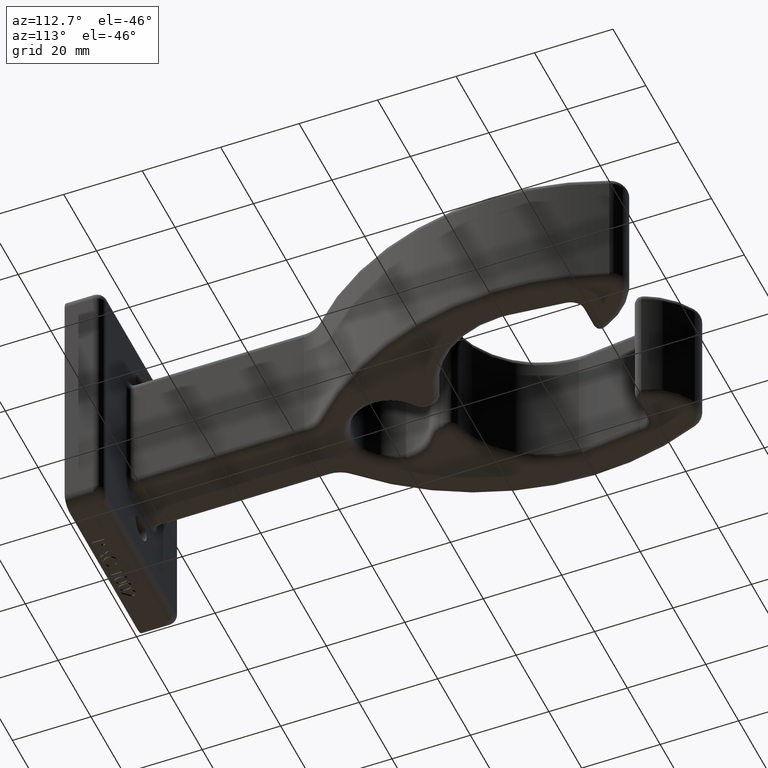
[diagram: clean part render]
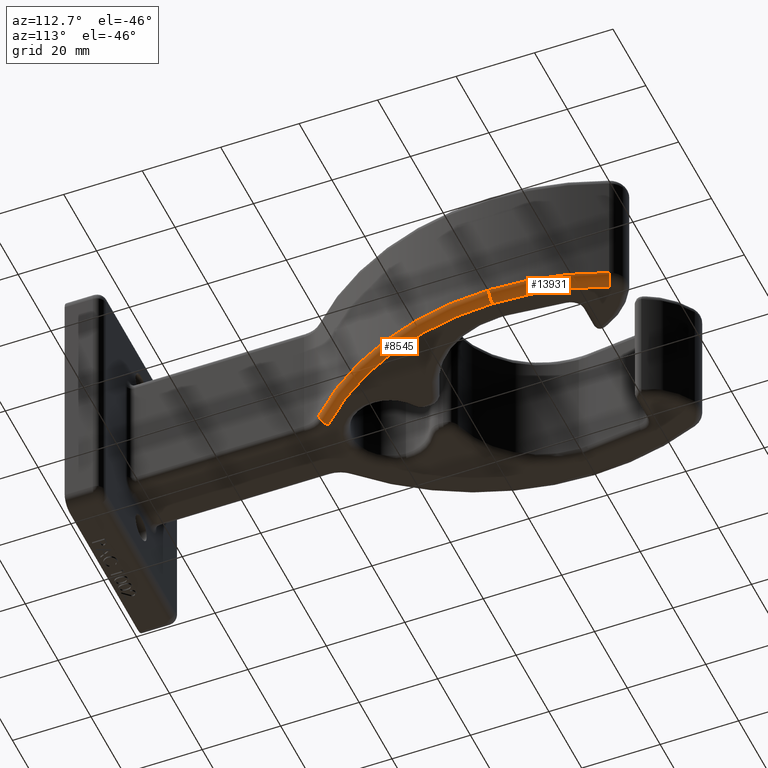
[diagram: same view with one multi-face feature highlighted, each face labeled with its STEP entity id]
A machine part, auxiliary view. The highlighted faces form ONE feature: a constant-radius fillet chain: 2 tangent blend faces with common blend radius 2.3813 mm. The faces share edges in the B-rep.
Their STEP definitions:
[1] entity #13931 (Torus):
#582 = CARTESIAN_POINT ( 'NONE',  ( 1.179253555513840100, 4.394837607850499600, -0.5937499999999998900 ) ) ;
#708 = EDGE_CURVE ( 'NONE', #4110, #11049, #10339, .T. ) ;
#1685 = AXIS2_PLACEMENT_3D ( 'NONE', #10715, #4123, #11812 ) ;
#1694 = DIRECTION ( 'NONE',  ( 0.0000000000000000000, 0.0000000000000000000, -1.000000000000000000 ) ) ;
#1883 = ORIENTED_EDGE ( 'NONE', *, *, #10493, .T. ) ;
#1888 = ORIENTED_EDGE ( 'NONE', *, *, #708, .F. ) ;
#2274 = CIRCLE ( 'NONE', #8068, 0.09375000000000005600 ) ;
#2597 = DIRECTION ( 'NONE',  ( -0.0000000000000000000, -0.0000000000000000000, -1.000000000000000000 ) ) ;
#3687 = EDGE_CURVE ( 'NONE', #10645, #4001, #4425, .T. ) ;
#4001 = VERTEX_POINT ( 'NONE', #4380 ) ;
#4110 = VERTEX_POINT ( 'NONE', #10310 ) ;
#4123 = DIRECTION ( 'NONE',  ( 0.0000000000000000000, 0.0000000000000000000, 1.000000000000000000 ) ) ;
#4380 = CARTESIAN_POINT ( 'NONE',  ( 1.179253555513840100, 4.394837607850499600, -0.6875000000000000000 ) ) ;
#4425 = CIRCLE ( 'NONE', #13116, 2.781250000000000400 ) ;
#6046 = DIRECTION ( 'NONE',  ( 0.3879674017300512900, -0.9216730956227554600, 0.0000000000000000000 ) ) ;
#6384 = CARTESIAN_POINT ( 'NONE',  ( 1.047813705429267600, 5.510243887824384700, -0.5937499999999998900 ) ) ;
#6533 = AXIS2_PLACEMENT_3D ( 'NONE', #9006, #13405, #10125 ) ;
#7126 = TOROIDAL_SURFACE ( 'NONE', #6533, 2.781250000000000400, 0.09375000000000001400 ) ;
#7831 = EDGE_CURVE ( 'NONE', #4001, #4110, #2274, .T. ) ;
#7935 = ORIENTED_EDGE ( 'NONE', *, *, #3687, .F. ) ;
#8068 = AXIS2_PLACEMENT_3D ( 'NONE', #582, #8256, #1694 ) ;
#8256 = DIRECTION ( 'NONE',  ( 0.0000000000000000000, -1.000000000000000000, 0.0000000000000000000 ) ) ;
#8987 = ORIENTED_EDGE ( 'NONE', *, *, #7831, .F. ) ;
#9006 = CARTESIAN_POINT ( 'NONE',  ( -1.601996444486160100, 4.394837607850499600, -0.5937499999999998900 ) ) ;
#9648 = CARTESIAN_POINT ( 'NONE',  ( -1.601996444486160100, 4.394837607850499600, -0.6875000000000000000 ) ) ;
#9669 = CARTESIAN_POINT ( 'NONE',  ( 0.9614068527146343300, 5.473871943912192800, -0.6875000000000000000 ) ) ;
#10125 = DIRECTION ( 'NONE',  ( 1.000000000000000000, 0.0000000000000000000, 0.0000000000000000000 ) ) ;
#10282 = DIRECTION ( 'NONE',  ( 1.000000000000000000, 5.304082396687467700E-015, 0.0000000000000000000 ) ) ;
#10310 = CARTESIAN_POINT ( 'NONE',  ( 1.273003555513840400, 4.394837607850499600, -0.5937499999999998900 ) ) ;
#10339 = CIRCLE ( 'NONE', #1685, 2.875000000000000400 ) ;
#10493 = EDGE_CURVE ( 'NONE', #10645, #11049, #13969, .T. ) ;
#10645 = VERTEX_POINT ( 'NONE', #9669 ) ;
#10715 = CARTESIAN_POINT ( 'NONE',  ( -1.601996444486160100, 4.394837607850499600, -0.5937499999999998900 ) ) ;
#10734 = FACE_OUTER_BOUND ( 'NONE', #11966, .T. ) ;
#11049 = VERTEX_POINT ( 'NONE', #6384 ) ;
#11812 = DIRECTION ( 'NONE',  ( 1.000000000000000000, 0.0000000000000000000, 0.0000000000000000000 ) ) ;
#11966 = EDGE_LOOP ( 'NONE', ( #8987, #7935, #1883, #1888 ) ) ;
#12657 = CARTESIAN_POINT ( 'NONE',  ( 0.9614068527146343300, 5.473871943912192800, -0.5937500000000000000 ) ) ;
#12753 = AXIS2_PLACEMENT_3D ( 'NONE', #12657, #6046, #13768 ) ;
#13116 = AXIS2_PLACEMENT_3D ( 'NONE', #9648, #2597, #10282 ) ;
#13405 = DIRECTION ( 'NONE',  ( 0.0000000000000000000, 0.0000000000000000000, 1.000000000000000000 ) ) ;
#13768 = DIRECTION ( 'NONE',  ( 0.9216730956227555700, 0.3879674017300514000, 0.0000000000000000000 ) ) ;
#13931 = ADVANCED_FACE ( 'NONE', ( #10734 ), #7126, .T. ) ;
#13969 = CIRCLE ( 'NONE', #12753, 0.09375000000000004200 ) ;
[2] entity #8545 (Torus):
#244 = CARTESIAN_POINT ( 'NONE',  ( -1.601996444486160100, 4.394837607850499600, -0.5937499999999998900 ) ) ;
#582 = CARTESIAN_POINT ( 'NONE',  ( 1.179253555513840100, 4.394837607850499600, -0.5937499999999998900 ) ) ;
#716 = TOROIDAL_SURFACE ( 'NONE', #12961, 2.781250000000000400, 0.09375000000000001400 ) ;
#790 = EDGE_LOOP ( 'NONE', ( #1659, #12743, #4202, #14227 ) ) ;
#1085 = DIRECTION ( 'NONE',  ( -0.0000000000000000000, -0.0000000000000000000, -1.000000000000000000 ) ) ;
#1193 = CARTESIAN_POINT ( 'NONE',  ( 0.3244053911065235000, 2.388764944579016400, -0.6875000000000000000 ) ) ;
#1257 = CIRCLE ( 'NONE', #4190, 0.09375000000000009700 ) ;
#1347 = DIRECTION ( 'NONE',  ( 1.000000000000000000, 0.0000000000000000000, 0.0000000000000000000 ) ) ;
#1659 = ORIENTED_EDGE ( 'NONE', *, *, #9330, .F. ) ;
#1694 = DIRECTION ( 'NONE',  ( 0.0000000000000000000, 0.0000000000000000000, -1.000000000000000000 ) ) ;
#1977 = VERTEX_POINT ( 'NONE', #9695 ) ;
#2211 = DIRECTION ( 'NONE',  ( -0.7212845530863752900, -0.6926388622355721400, -0.0000000000000000000 ) ) ;
#2274 = CIRCLE ( 'NONE', #8068, 0.09375000000000005600 ) ;
#2734 = DIRECTION ( 'NONE',  ( 0.0000000000000000000, 0.0000000000000000000, 1.000000000000000000 ) ) ;
#3452 = VERTEX_POINT ( 'NONE', #1193 ) ;
#4001 = VERTEX_POINT ( 'NONE', #4380 ) ;
#4110 = VERTEX_POINT ( 'NONE', #10310 ) ;
#4190 = AXIS2_PLACEMENT_3D ( 'NONE', #8785, #2211, #9896 ) ;
#4202 = ORIENTED_EDGE ( 'NONE', *, *, #10307, .F. ) ;
#4291 = AXIS2_PLACEMENT_3D ( 'NONE', #7647, #1085, #8773 ) ;
#4380 = CARTESIAN_POINT ( 'NONE',  ( 1.179253555513840100, 4.394837607850499600, -0.6875000000000000000 ) ) ;
#6714 = EDGE_CURVE ( 'NONE', #3452, #1977, #1257, .T. ) ;
#7229 = CIRCLE ( 'NONE', #4291, 2.781250000000000400 ) ;
#7647 = CARTESIAN_POINT ( 'NONE',  ( -1.601996444486160100, 4.394837607850499600, -0.6875000000000000000 ) ) ;
#7831 = EDGE_CURVE ( 'NONE', #4001, #4110, #2274, .T. ) ;
#7919 = DIRECTION ( 'NONE',  ( 0.0000000000000000000, 0.0000000000000000000, 1.000000000000000000 ) ) ;
#8068 = AXIS2_PLACEMENT_3D ( 'NONE', #582, #8256, #1694 ) ;
#8256 = DIRECTION ( 'NONE',  ( 0.0000000000000000000, -1.000000000000000000, 0.0000000000000000000 ) ) ;
#8545 = ADVANCED_FACE ( 'NONE', ( #12436 ), #716, .T. ) ;
#8773 = DIRECTION ( 'NONE',  ( 1.000000000000000000, 0.0000000000000000000, 0.0000000000000000000 ) ) ;
#8785 = CARTESIAN_POINT ( 'NONE',  ( 0.3244053911065235000, 2.388764944579016400, -0.5937500000000000000 ) ) ;
#9050 = AXIS2_PLACEMENT_3D ( 'NONE', #244, #7919, #1347 ) ;
#9330 = EDGE_CURVE ( 'NONE', #4001, #3452, #7229, .T. ) ;
#9695 = CARTESIAN_POINT ( 'NONE',  ( 0.3893402844411084100, 2.321144517727168600, -0.5937499999999998900 ) ) ;
#9896 = DIRECTION ( 'NONE',  ( 0.6926388622355713600, -0.7212845530863759600, 0.0000000000000000000 ) ) ;
#10307 = EDGE_CURVE ( 'NONE', #1977, #4110, #13079, .T. ) ;
#10310 = CARTESIAN_POINT ( 'NONE',  ( 1.273003555513840400, 4.394837607850499600, -0.5937499999999998900 ) ) ;
#10433 = DIRECTION ( 'NONE',  ( 1.000000000000000000, 0.0000000000000000000, 0.0000000000000000000 ) ) ;
#11446 = CARTESIAN_POINT ( 'NONE',  ( -1.601996444486160100, 4.394837607850499600, -0.5937499999999998900 ) ) ;
#12436 = FACE_OUTER_BOUND ( 'NONE', #790, .T. ) ;
#12743 = ORIENTED_EDGE ( 'NONE', *, *, #7831, .T. ) ;
#12961 = AXIS2_PLACEMENT_3D ( 'NONE', #11446, #2734, #10433 ) ;
#13079 = CIRCLE ( 'NONE', #9050, 2.875000000000000400 ) ;
#14227 = ORIENTED_EDGE ( 'NONE', *, *, #6714, .F. ) ;